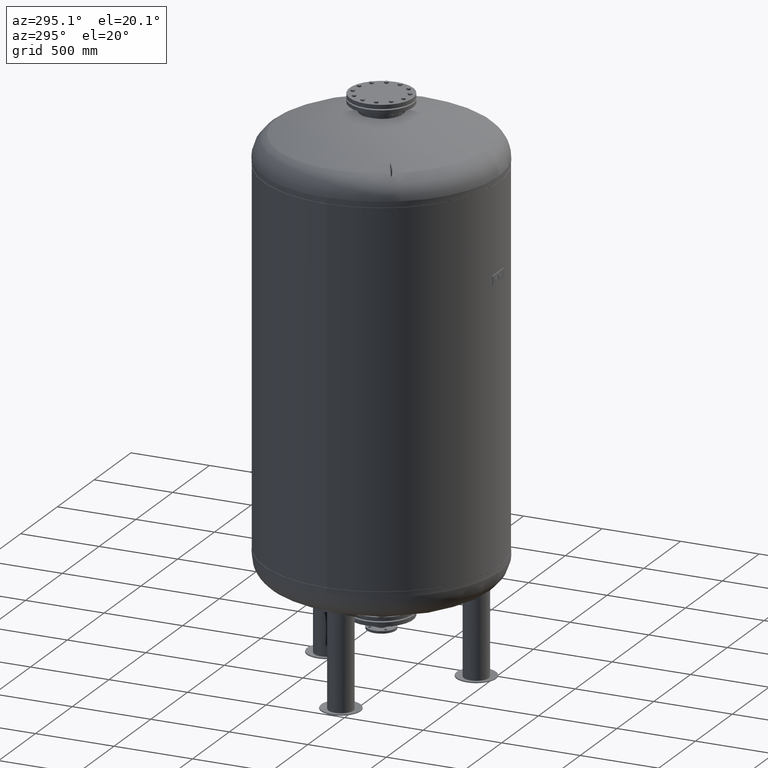
[diagram: clean part render]
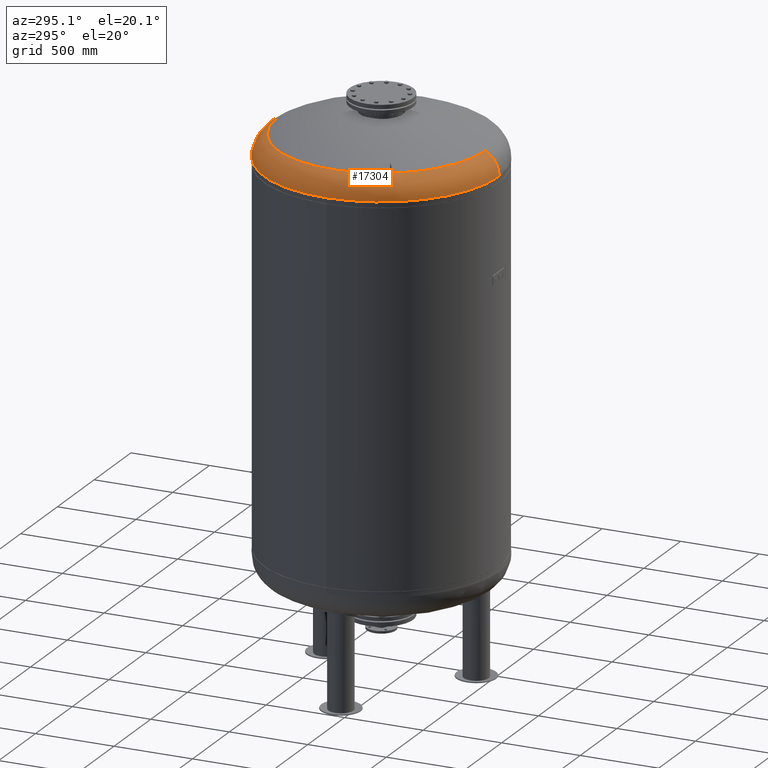
[diagram: same view with one face highlighted and labeled with its STEP entity id]
A machine part, auxiliary view. The second image highlights one B-rep face of the part: STEP entity #17304.
In plain terms, the highlighted toroidal blend (fillet) surface has major radius 591 mm and minor (blend) radius 159 mm.
Its self-contained STEP definition (entity closure, byte-faithful):
#16837=CARTESIAN_POINT('',(-750.0,3.761120E-014,3214.762332584101800));
#16838=VERTEX_POINT('',#16837);
#16845=CARTESIAN_POINT('',(1.267436E-013,750.0,3214.762332584101800));
#16846=VERTEX_POINT('',#16845);
#16847=CARTESIAN_POINT('',(1.459986E-014,-5.423428E-014,3214.762332584101800));
#16848=DIRECTION('',(0.0,0.0,-1.0));
#16849=DIRECTION('',(1.0,0.0,0.0));
#16850=AXIS2_PLACEMENT_3D('',#16847,#16848,#16849);
#16851=CIRCLE('',#16850,750.0);
#16852=EDGE_CURVE('',#16838,#16846,#16851,.T.);
#16932=CARTESIAN_POINT('',(3.489809E-014,-750.0,3214.762332584101800));
#16933=VERTEX_POINT('',#16932);
#16934=CARTESIAN_POINT('',(2.782883E-014,-660.606666666666800,3357.716562866229200));
#16935=VERTEX_POINT('',#16934);
#16936=CARTESIAN_POINT('',(3.489809E-014,-591.0,3214.762332584101800));
#16937=DIRECTION('',(-1.0,0.0,0.0));
#16938=DIRECTION('',(0.0,-1.0,0.0));
#16939=AXIS2_PLACEMENT_3D('',#16936,#16937,#16938);
#16940=CIRCLE('',#16939,159.0);
#16941=EDGE_CURVE('',#16933,#16935,#16940,.T.);
#16951=CARTESIAN_POINT('',(1.087271E-013,660.606666666666800,3357.716562866229200));
#16952=VERTEX_POINT('',#16951);
#16953=CARTESIAN_POINT('',(1.072723E-013,591.0,3214.762332584101800));
#16954=DIRECTION('',(1.0,0.0,0.0));
#16955=DIRECTION('',(0.0,1.0,0.0));
#16956=AXIS2_PLACEMENT_3D('',#16953,#16954,#16955);
#16957=CIRCLE('',#16956,159.0);
#16958=EDGE_CURVE('',#16846,#16952,#16957,.T.);
#17068=CARTESIAN_POINT('',(-570.596255916196580,-332.898003566952920,3357.716562866229700));
#17069=VERTEX_POINT('',#17068);
#17070=CARTESIAN_POINT('',(-588.588482349331340,-343.285820341443810,3345.575471650438900));
#17071=VERTEX_POINT('',#17070);
#17072=CARTESIAN_POINT('',(-570.596255916196580,-332.898003566952920,3357.716562866229700));
#17073=CARTESIAN_POINT('',(-572.053991207973350,-333.739627430067460,3356.896971483751700));
#17074=CARTESIAN_POINT('',(-573.514766784388030,-334.583006602336130,3356.038819520509200));
#17075=CARTESIAN_POINT('',(-576.976356895228950,-336.581556584654270,3353.913031156073000));
#17076=CARTESIAN_POINT('',(-578.974623379368950,-337.735256277185040,3352.612231014925300));
#17077=CARTESIAN_POINT('',(-582.931609407494880,-340.019823225703130,3349.881663004374300));
#17078=CARTESIAN_POINT('',(-584.890327860480620,-341.150689851801190,3348.451893026950500));
#17079=CARTESIAN_POINT('',(-587.410163811145820,-342.605517816231330,3346.507741414689900));
#17080=CARTESIAN_POINT('',(-588.001034993596930,-342.946657452475790,3346.044139472540300));
#17081=CARTESIAN_POINT('',(-588.588482349331340,-343.285820341443810,3345.575471650438900));
#17082=B_SPLINE_CURVE_WITH_KNOTS('',3,(#17072,#17073,#17074,#17075,#17076,#17077,#17078,#17079,#17080,#17081),.UNSPECIFIED.,.F.,.U.,(4,2,2,2,4),(774.656357685334110,780.010496801651020,787.369065281617960,794.727633761584910,796.996981542536560),.UNSPECIFIED.);
#17083=EDGE_CURVE('',#17069,#17071,#17082,.T.);
#17185=CARTESIAN_POINT('',(-591.588482349331340,-338.089667918737230,3345.575471650438900));
#17186=VERTEX_POINT('',#17185);
#17187=CARTESIAN_POINT('',(-588.588482349331340,-343.285820341443810,3345.575471650438900));
#17188=CARTESIAN_POINT('',(-589.090111222557650,-342.418391231104920,3345.578030124753200));
#17189=CARTESIAN_POINT('',(-589.590425441359340,-341.552525995020690,3345.579301453786200));
#17190=CARTESIAN_POINT('',(-590.089401200238290,-340.688274628897030,3345.579301453786200));
#17191=CARTESIAN_POINT('',(-590.588376959113930,-339.824023262779290,3345.579301453786200));
#17192=CARTESIAN_POINT('',(-591.088081140412330,-338.957805821386390,3345.578030124753200));
#17193=CARTESIAN_POINT('',(-591.588482349331340,-338.089667918737230,3345.575471650438900));
#17194=B_SPLINE_CURVE_WITH_KNOTS('',3,(#17187,#17188,#17189,#17190,#17191,#17192,#17193),.UNSPECIFIED.,.F.,.U.,(4,3,4),(-2.993854553274037,0.0,2.993854553253479),.UNSPECIFIED.);
#17195=EDGE_CURVE('',#17071,#17186,#17194,.T.);
#17220=CARTESIAN_POINT('',(-573.596255916196580,-327.701851144246290,3357.716562866229700));
#17221=VERTEX_POINT('',#17220);
#17222=CARTESIAN_POINT('',(-591.588482349331340,-338.089667918737230,3345.575471650438900));
#17223=CARTESIAN_POINT('',(-591.001091399295430,-337.750537595614450,3346.044094471851200));
#17224=CARTESIAN_POINT('',(-590.410277309616280,-337.409430921897070,3346.507652363015000));
#17225=CARTESIAN_POINT('',(-587.890496100690370,-335.954634562624850,3348.451768031998700));
#17226=CARTESIAN_POINT('',(-585.931774475118230,-334.823766104833230,3349.881544856047600));
#17227=CARTESIAN_POINT('',(-581.974781685757190,-332.539195252714250,3352.612126014599200));
#17228=CARTESIAN_POINT('',(-579.976511612969600,-331.385493488276780,3353.912932457119000));
#17229=CARTESIAN_POINT('',(-576.514867502691460,-329.386912329369070,3356.038760350182700));
#17230=CARTESIAN_POINT('',(-575.054041405248540,-328.543503988771140,3356.896943261032400));
#17231=CARTESIAN_POINT('',(-573.596255916196580,-327.701851144246290,3357.716562866229700));
#17232=B_SPLINE_CURVE_WITH_KNOTS('',3,(#17222,#17223,#17224,#17225,#17226,#17227,#17228,#17229,#17230,#17231),.UNSPECIFIED.,.F.,.U.,(4,2,2,2,4),(144.901635701804910,147.170765481127490,154.529352849647950,161.887940218168410,167.242267557251490),.UNSPECIFIED.);
#17233=EDGE_CURVE('',#17186,#17221,#17232,.T.);
#17270=CARTESIAN_POINT('',(3.489809E-014,-5.423428E-014,3214.762332584101800));
#17271=DIRECTION('',(4.945121E-017,-1.836970E-016,-1.0));
#17272=DIRECTION('',(0.0,-1.0,0.0));
#17273=AXIS2_PLACEMENT_3D('',#17270,#17271,#17272);
#17274=TOROIDAL_SURFACE('',#17273,591.0,159.0);
#17275=ORIENTED_EDGE('',*,*,#16941,.T.);
#17276=CARTESIAN_POINT('',(7.530601E-015,-2.797401E-014,3357.716562866229200));
#17277=DIRECTION('',(0.0,0.0,-1.0));
#17278=DIRECTION('',(1.0,0.0,0.0));
#17279=AXIS2_PLACEMENT_3D('',#17276,#17277,#17278);
#17280=CIRCLE('',#17279,660.606666666666800);
#17281=EDGE_CURVE('',#16935,#17069,#17280,.T.);
#17282=ORIENTED_EDGE('',*,*,#17281,.T.);
#17283=ORIENTED_EDGE('',*,*,#17083,.T.);
#17284=ORIENTED_EDGE('',*,*,#17195,.T.);
#17285=ORIENTED_EDGE('',*,*,#17233,.T.);
#17286=CARTESIAN_POINT('',(7.530601E-015,-2.797401E-014,3357.716562866229200));
#17287=DIRECTION('',(0.0,0.0,-1.0));
#17288=DIRECTION('',(1.0,0.0,0.0));
#17289=AXIS2_PLACEMENT_3D('',#17286,#17287,#17288);
#17290=CIRCLE('',#17289,660.606666666666800);
#17291=EDGE_CURVE('',#17221,#16952,#17290,.T.);
#17292=ORIENTED_EDGE('',*,*,#17291,.T.);
#17293=ORIENTED_EDGE('',*,*,#16958,.F.);
#17294=ORIENTED_EDGE('',*,*,#16852,.F.);
#17295=CARTESIAN_POINT('',(1.459986E-014,-5.423428E-014,3214.762332584101800));
#17296=DIRECTION('',(0.0,0.0,-1.0));
#17297=DIRECTION('',(1.0,0.0,0.0));
#17298=AXIS2_PLACEMENT_3D('',#17295,#17296,#17297);
#17299=CIRCLE('',#17298,750.0);
#17300=EDGE_CURVE('',#16933,#16838,#17299,.T.);
#17301=ORIENTED_EDGE('',*,*,#17300,.F.);
#17302=EDGE_LOOP('',(#17275,#17282,#17283,#17284,#17285,#17292,#17293,#17294,#17301));
#17303=FACE_OUTER_BOUND('',#17302,.T.);
#17304=ADVANCED_FACE('',(#17303),#17274,.T.);